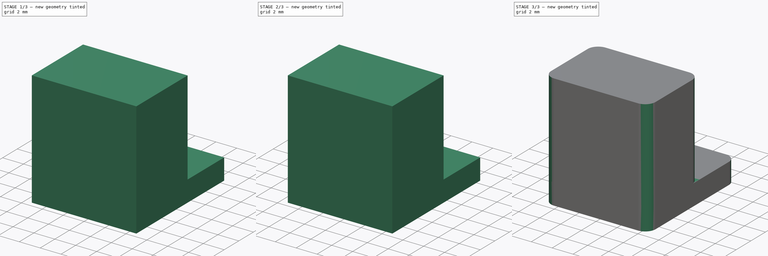
[diagram: build sequence overview — one tinted view per stage of 3, left to right]
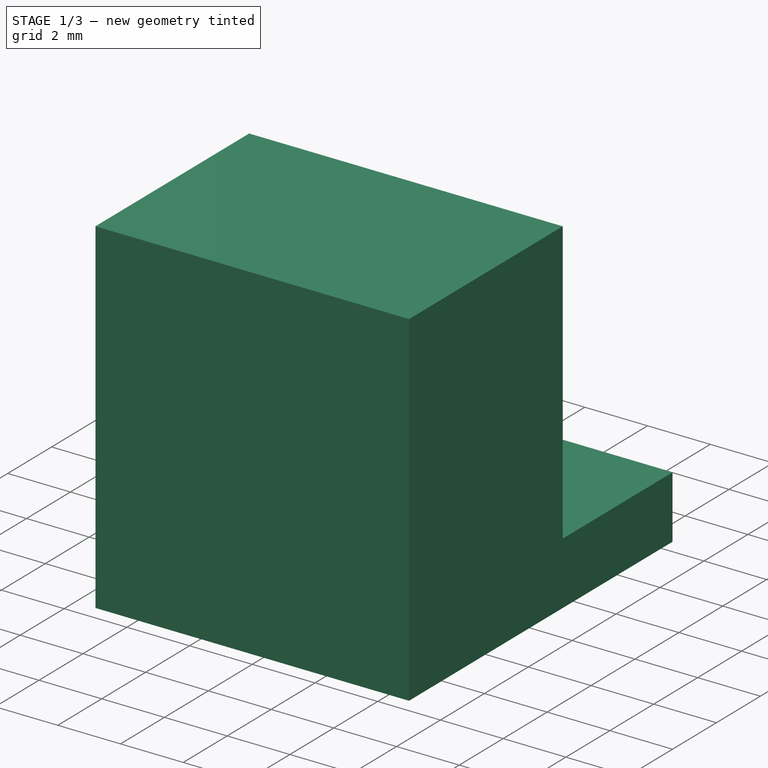
[diagram: stage 1 of 3 — iso view after this stage's code; geometry added in this stage tinted green]
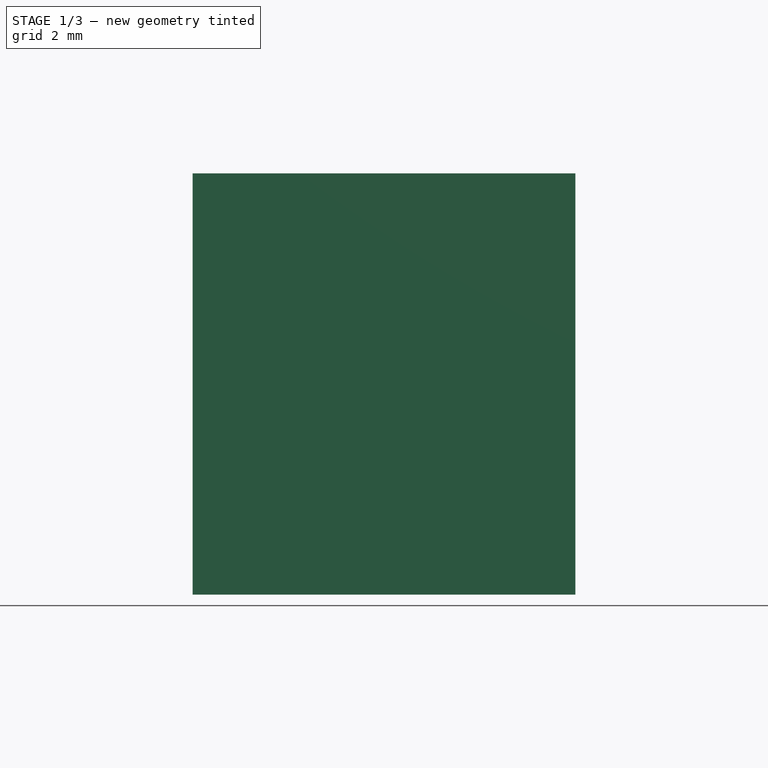
[diagram: stage 1 of 3 — front view after this stage's code; geometry added in this stage tinted green]
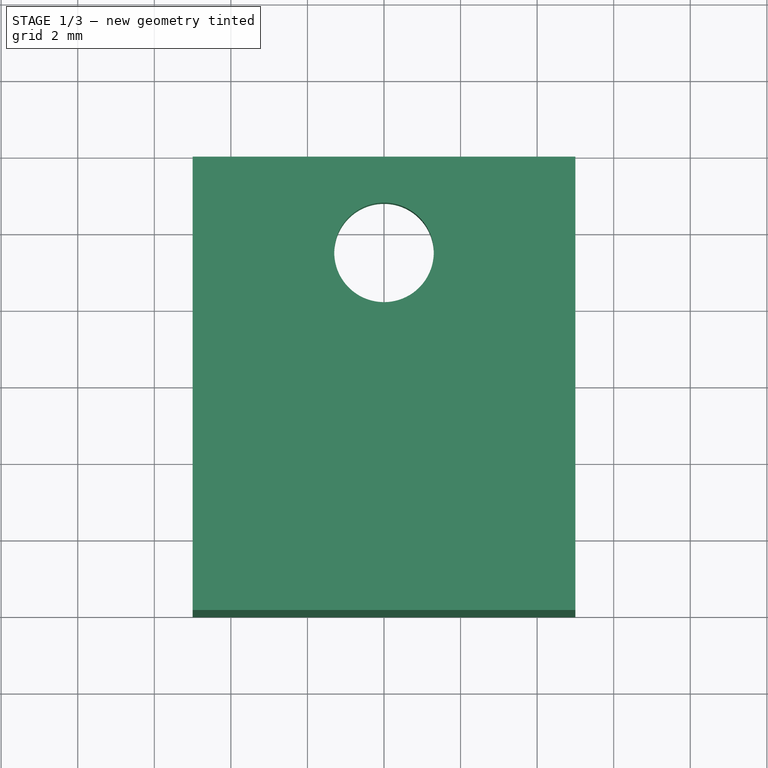
[diagram: stage 1 of 3 — top view after this stage's code; geometry added in this stage tinted green]
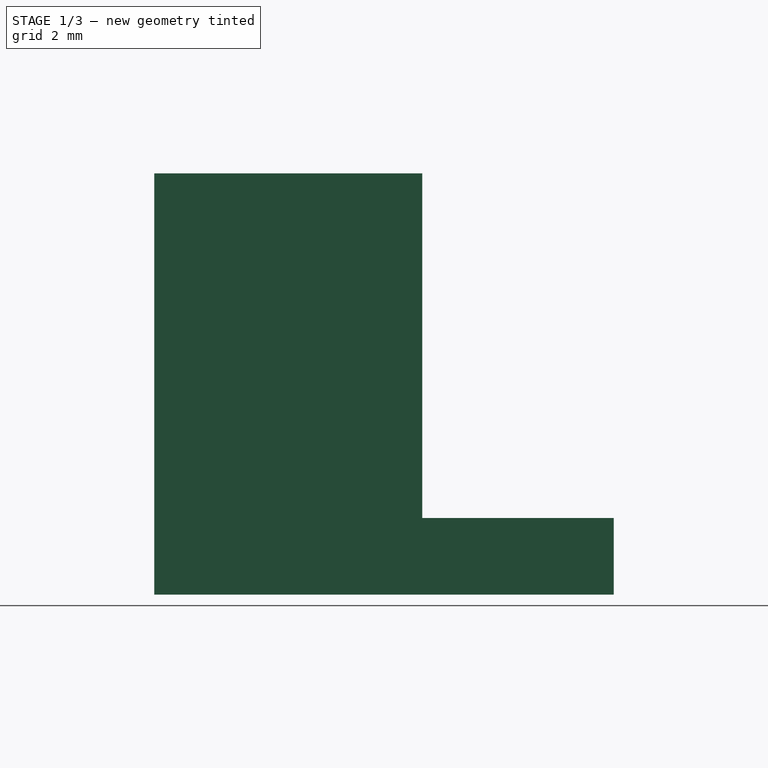
[diagram: stage 1 of 3 — right view after this stage's code; geometry added in this stage tinted green]
FCSTD DOCUMENT  (FreeCAD 0.16R6706 (Git))
Label: Aufhaengung_Abstand
License: All rights reserved
LicenseURL: http://de.wikipedia.org/wiki/Alle_Rechte_vorbehalten
objects: Sketcher::SketchObject×2, PartDesign::Pad×2, PartDesign::Fillet×2, Part::Fuse×1
note: 9 computed .brp shape members not serialized (recipe doc carries the construction recipe); baked Part::Feature solids carry a one-line shape summary decoded from their .brp

FEATURE [Sketcher::SketchObject] Sketch
  sketch-geometry (5):
    g0: LineSegment StartX=-5 StartY=12 StartZ=0 EndX=5 EndY=12 EndZ=0
    g1: LineSegment StartX=5 StartY=12 StartZ=0 EndX=5 EndY=0 EndZ=0
    g2: LineSegment StartX=5 StartY=0 StartZ=0 EndX=-5 EndY=0 EndZ=0
    g3: LineSegment StartX=-5 StartY=0 StartZ=0 EndX=-5 EndY=12 EndZ=0
    g4: Circle CenterX=0 CenterY=9.5 CenterZ=0 NormalX=0 NormalY=0 NormalZ=1 Radius=1.3
  constraints (15):
    c: Coincident(g0,g1)
    c: Coincident(g1,g2)
    c: Coincident(g2,g3)
    c: Coincident(g3,g0)
    c: Horizontal(g0)
    c: Horizontal(g2)
    c: Vertical(g1)
    c: Vertical(g3)
    c: PointOnObject(g1,g-1)
    c: Symmetric(g2,g1,g-2)
    c: DistanceY(g1,g0) = 12
    c: DistanceX(g2,g1) = 10
    c: PointOnObject(g4,g-2)
    c: Radius(g4) = 1.3
    c: DistanceY(g4,g0) = 2.5
FEATURE [PartDesign::Pad] Pad
  Length = 2
  Length2 = 100
  Reversed = true
  Sketch = -> Sketch
  Type = 0
FEATURE [Sketcher::SketchObject] Sketch001
  sketch-geometry (4):
    g0: LineSegment StartX=-5 StartY=7 StartZ=0 EndX=5 EndY=7 EndZ=0
    g1: LineSegment StartX=5 StartY=7 StartZ=0 EndX=5 EndY=0 EndZ=0
    g2: LineSegment StartX=5 StartY=0 StartZ=0 EndX=-5 EndY=0 EndZ=0
    g3: LineSegment StartX=-5 StartY=0 StartZ=0 EndX=-5 EndY=7 EndZ=0
  constraints (12):
    c: Coincident(g0,g1)
    c: Coincident(g1,g2)
    c: Coincident(g2,g3)
    c: Coincident(g3,g0)
    c: Horizontal(g0)
    c: Horizontal(g2)
    c: Vertical(g1)
    c: Vertical(g3)
    c: PointOnObject(g1,g-1)
    c: DistanceX(g2,g1) = 10
    c: Symmetric(g2,g1,g-2)
    c: DistanceY(g1,g0) = 7
FEATURE [PartDesign::Pad] Pad001
  Length = 9
  Length2 = 100
  Sketch = -> Sketch001
  Type = 0
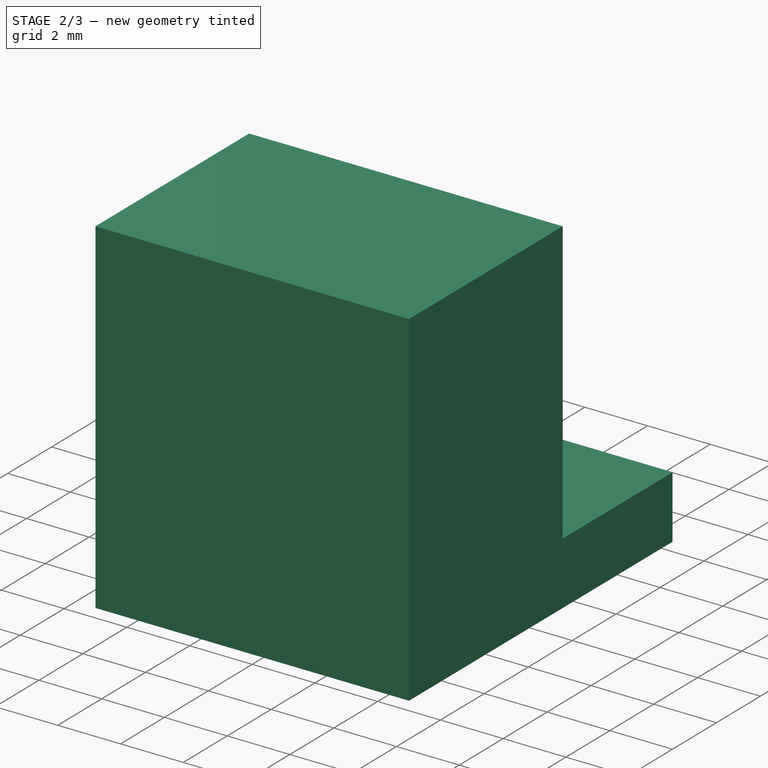
[diagram: stage 2 of 3 — iso view after this stage's code; geometry added in this stage tinted green]
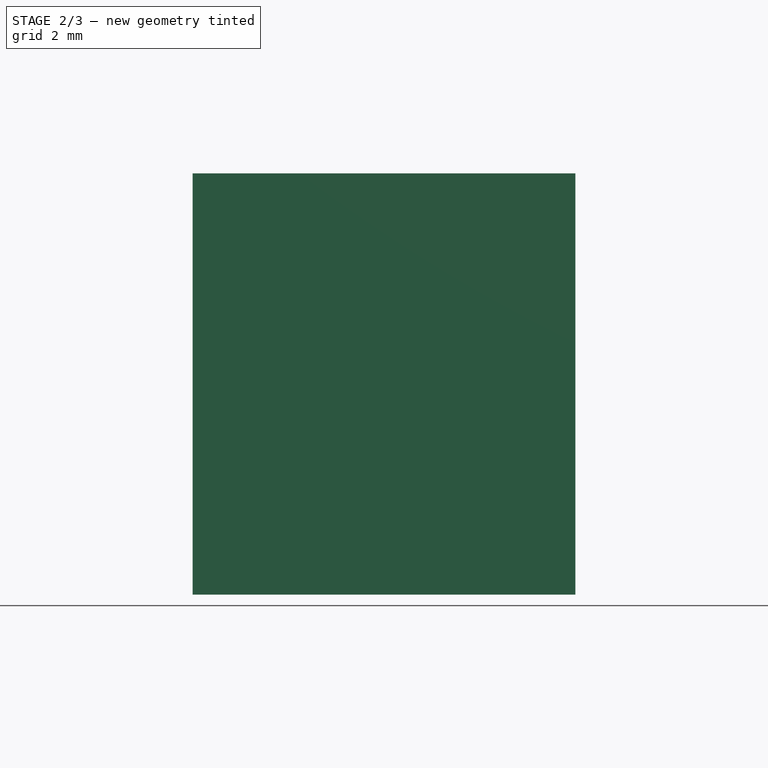
[diagram: stage 2 of 3 — front view after this stage's code; geometry added in this stage tinted green]
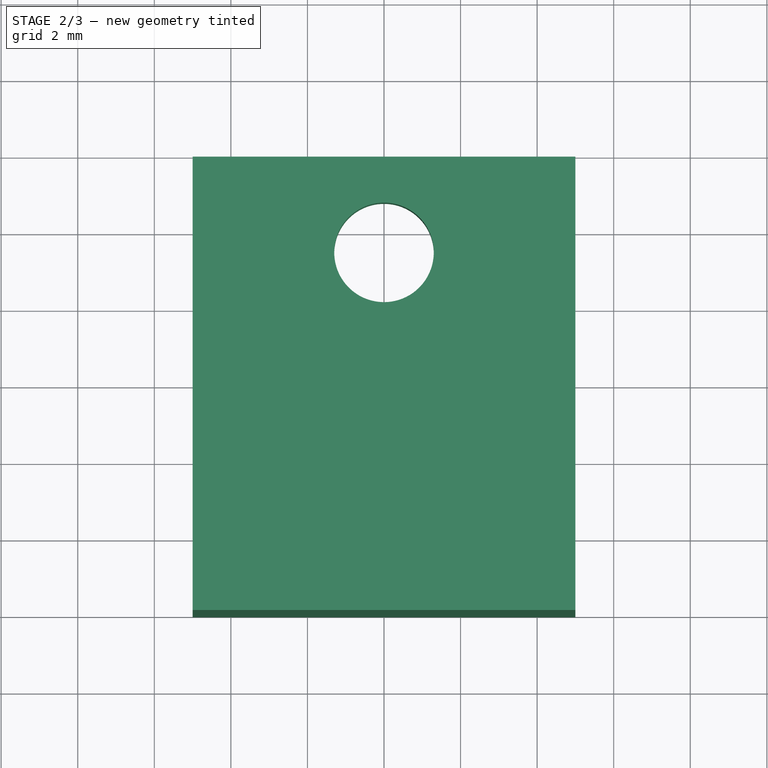
[diagram: stage 2 of 3 — top view after this stage's code; geometry added in this stage tinted green]
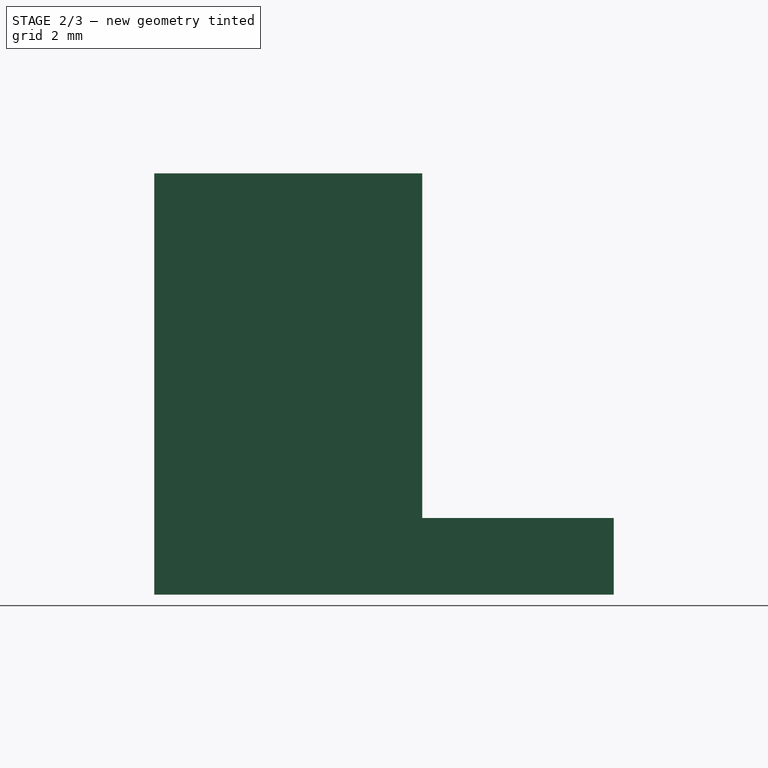
[diagram: stage 2 of 3 — right view after this stage's code; geometry added in this stage tinted green]
FEATURE [Part::Fuse] Fusion
  Base = -> Pad
  Tool = -> Pad001
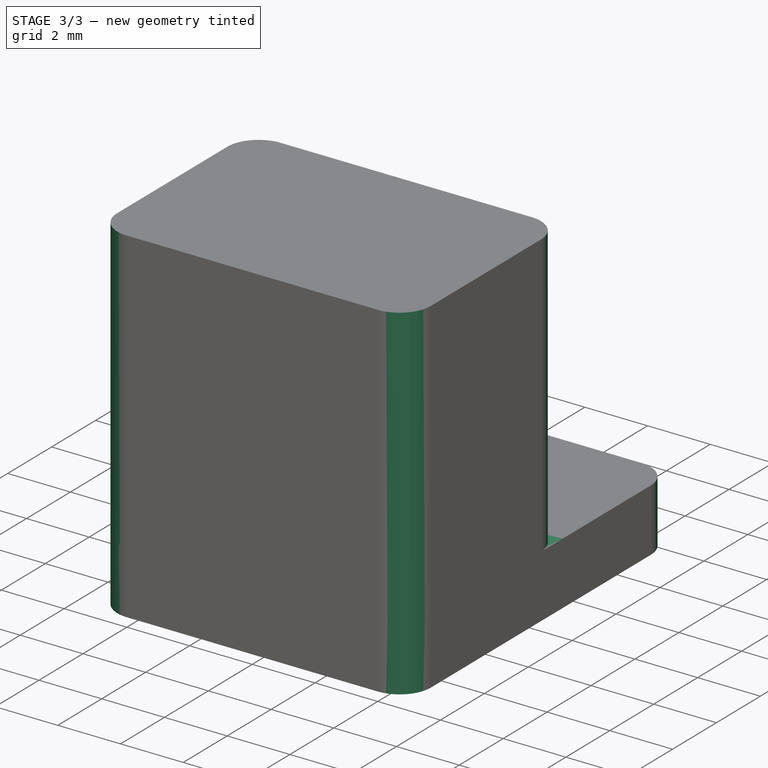
[diagram: stage 3 of 3 — iso view after this stage's code; geometry added in this stage tinted green]
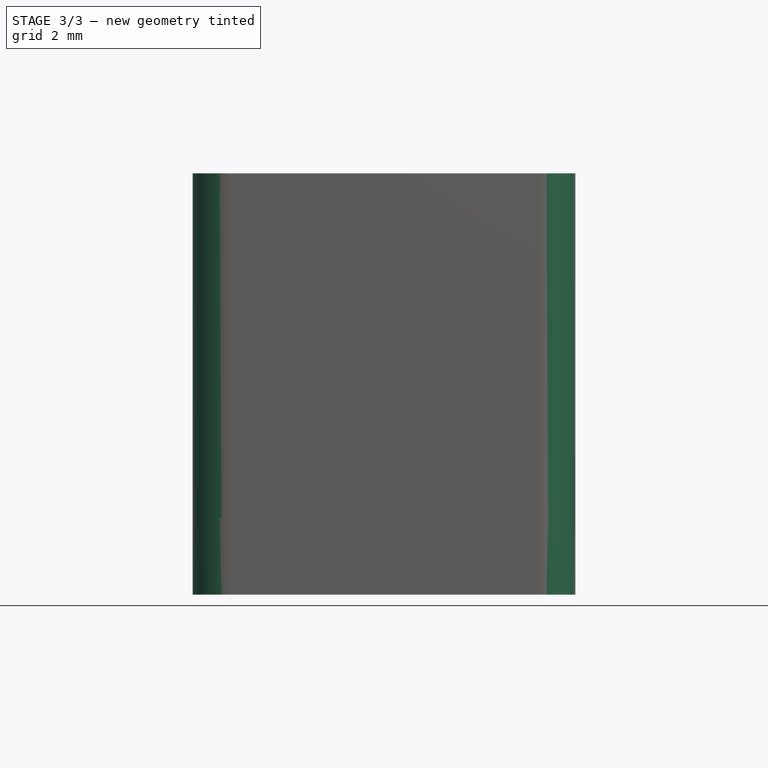
[diagram: stage 3 of 3 — front view after this stage's code; geometry added in this stage tinted green]
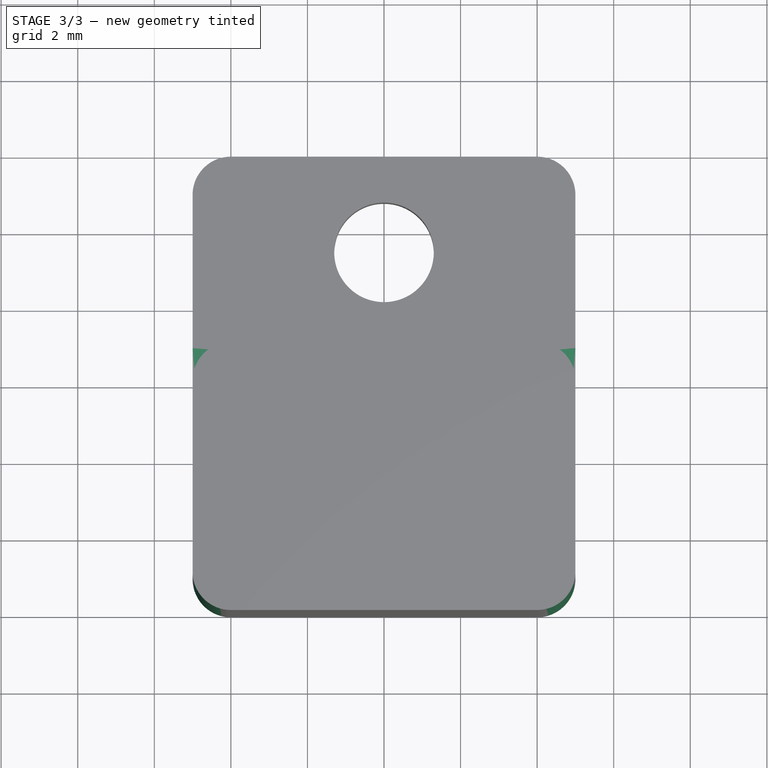
[diagram: stage 3 of 3 — top view after this stage's code; geometry added in this stage tinted green]
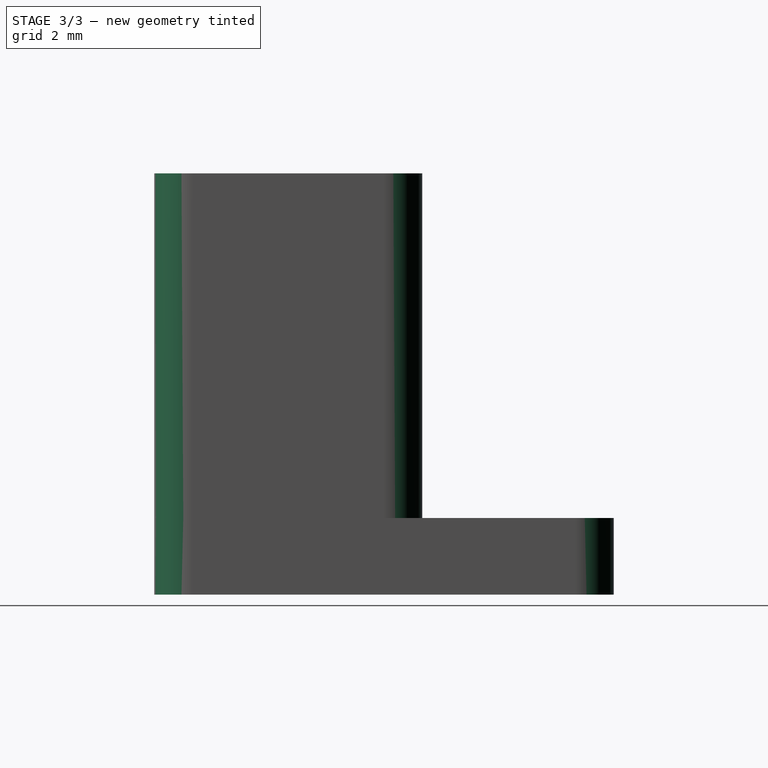
[diagram: stage 3 of 3 — right view after this stage's code; geometry added in this stage tinted green]
FEATURE [PartDesign::Fillet] Fillet
  Base = -> Fusion [Edge23,Edge12]
  Radius = 1
FEATURE [PartDesign::Fillet] Fillet001
  Base = -> Fillet [Edge31,Edge22,Edge27,Edge13,Edge16,Edge3]
  Radius = 1
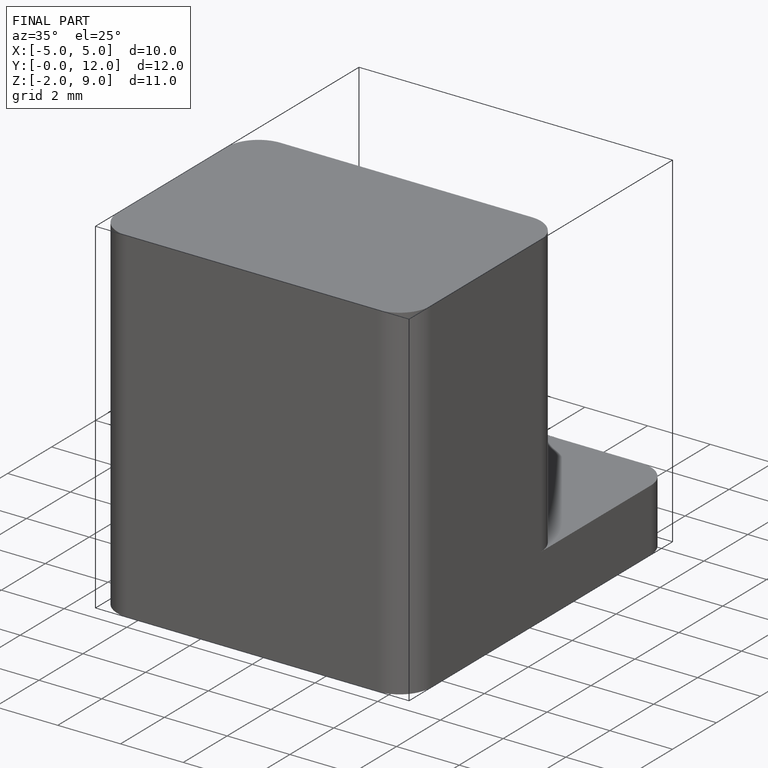
[diagram: finished part — iso view with bounding-box wireframe]
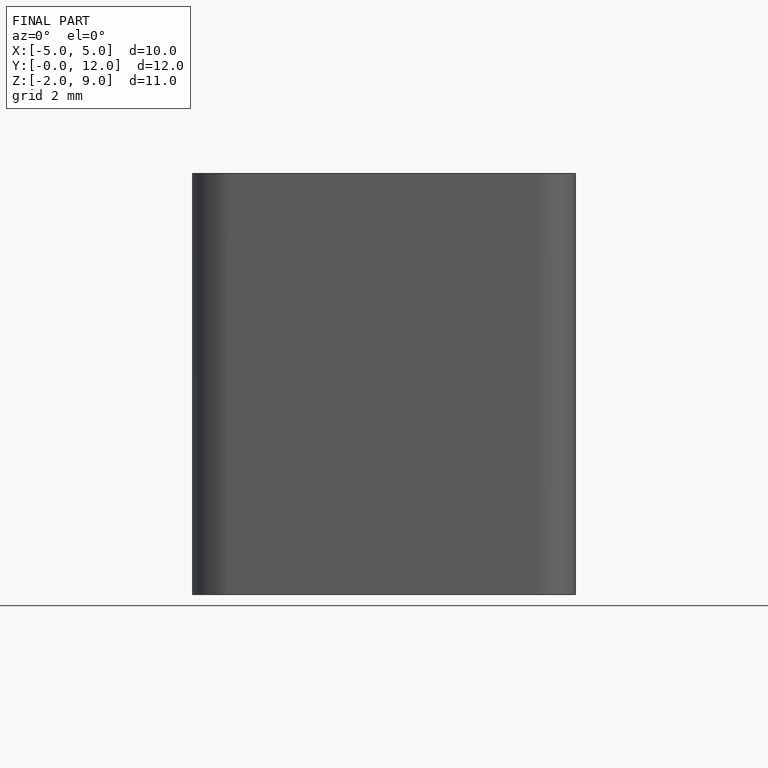
[diagram: finished part — front view with bounding-box wireframe]
